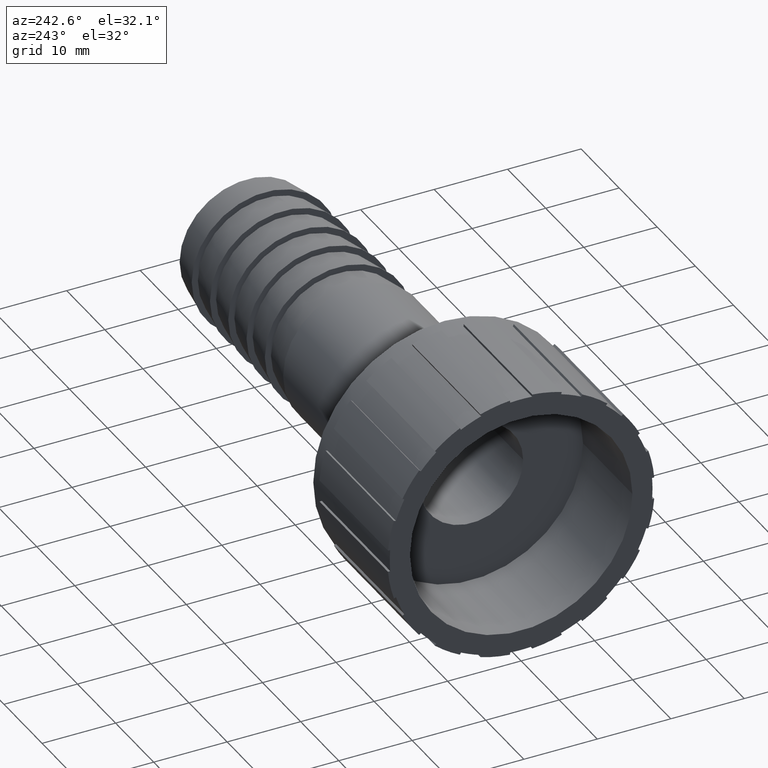
[diagram: clean part render]
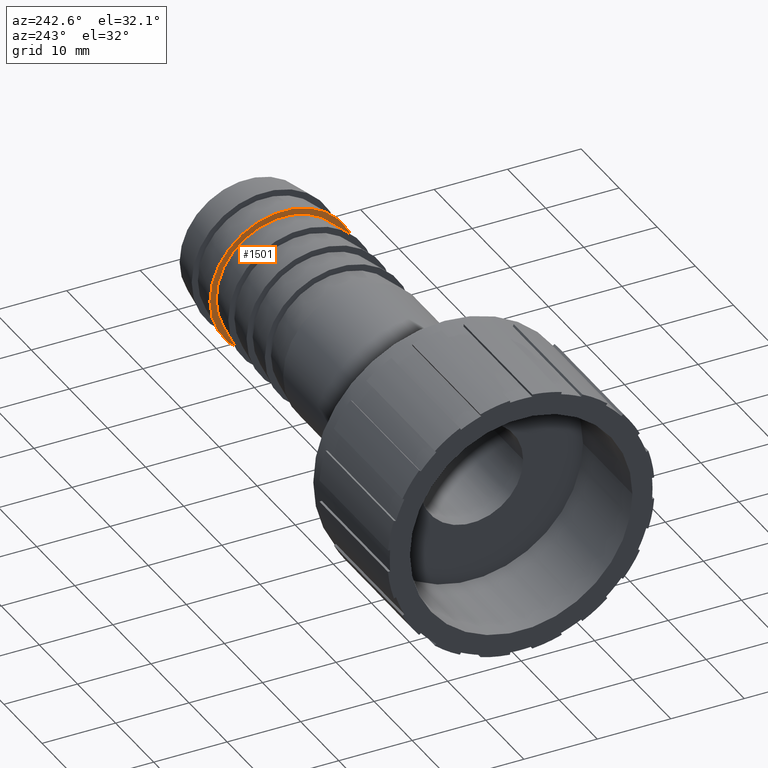
[diagram: same view with one face highlighted and labeled with its STEP entity id]
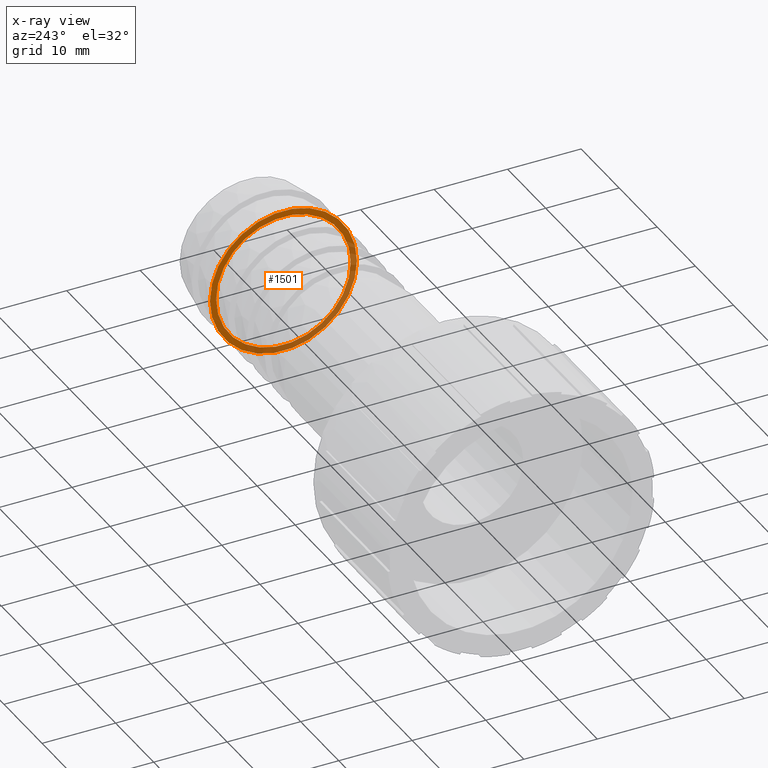
[diagram: x-ray of the same camera — body ghosted, the highlighted face saturated]
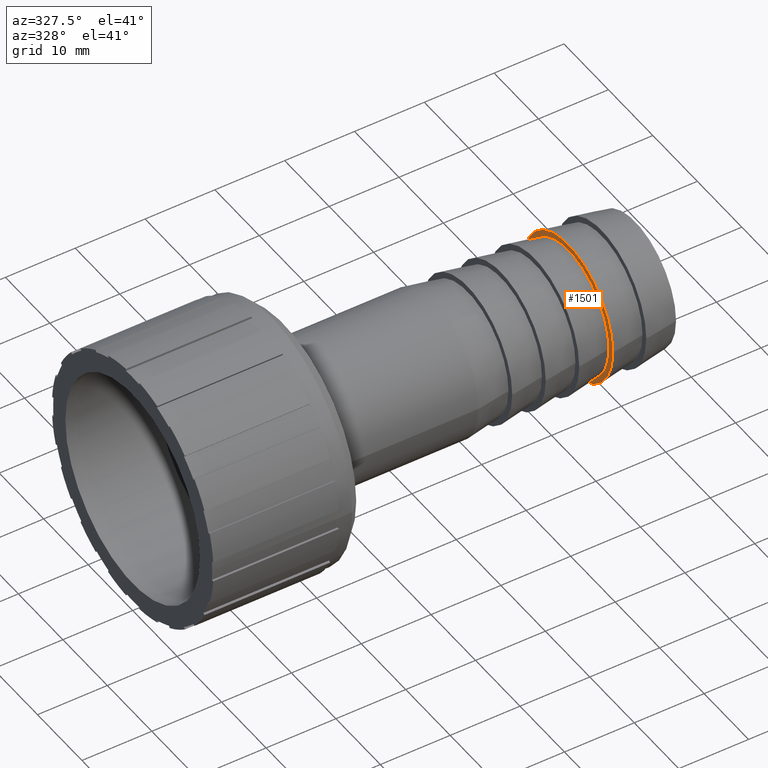
[diagram: same view with one face highlighted and labeled with its STEP entity id]
A machine part, auxiliary view. The second image highlights one B-rep face of the part: STEP entity #1501.
The next image is the same camera in x-ray: the body ghosted, the highlighted face saturated — about 39% of this face is hidden behind the body in this view.
A second angle (auxiliary view) of the same face is appended — the face is thin or edge-on in the first view.
In plain terms, the highlighted planar face has unit normal (-1, 0, 0).
Its self-contained STEP definition (entity closure, byte-faithful):
#53=FACE_BOUND('',#316,.T.);
#136=CIRCLE('',#1661,10.);
#137=CIRCLE('',#1663,9.15363049259937);
#220=FACE_OUTER_BOUND('',#315,.T.);
#315=EDGE_LOOP('',(#1351));
#316=EDGE_LOOP('',(#1352));
#727=VERTEX_POINT('',#2559);
#728=VERTEX_POINT('',#2562);
#938=EDGE_CURVE('',#727,#727,#136,.T.);
#939=EDGE_CURVE('',#728,#728,#137,.T.);
#1351=ORIENTED_EDGE('',*,*,#938,.T.);
#1352=ORIENTED_EDGE('',*,*,#939,.F.);
#1422=PLANE('',#1662);
#1501=ADVANCED_FACE('',(#220,#53),#1422,.T.);
#1661=AXIS2_PLACEMENT_3D('',#2560,#2107,#2108);
#1662=AXIS2_PLACEMENT_3D('',#2561,#2109,#2110);
#1663=AXIS2_PLACEMENT_3D('',#2563,#2111,#2112);
#2107=DIRECTION('center_axis',(-1.,0.,0.));
#2108=DIRECTION('ref_axis',(0.,0.,1.));
#2109=DIRECTION('center_axis',(-1.,0.,0.));
#2110=DIRECTION('ref_axis',(0.,0.,1.));
#2111=DIRECTION('center_axis',(-1.,0.,0.));
#2112=DIRECTION('ref_axis',(0.,0.,1.));
#2559=CARTESIAN_POINT('',(62.4,-10.,0.));
#2560=CARTESIAN_POINT('Origin',(62.4,0.,0.));
#2561=CARTESIAN_POINT('Origin',(62.4,-9.15363049259937,0.));
#2562=CARTESIAN_POINT('',(62.4,-9.15363049259937,0.));
#2563=CARTESIAN_POINT('Origin',(62.4,0.,0.));